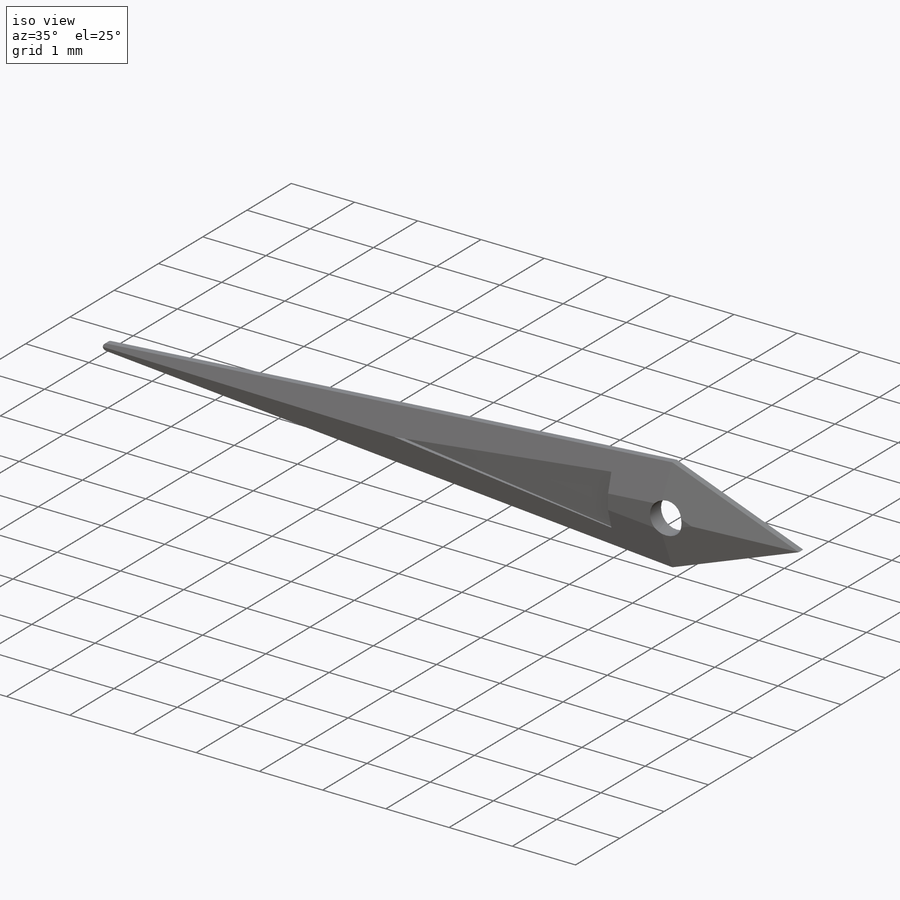
[diagram: iso view]
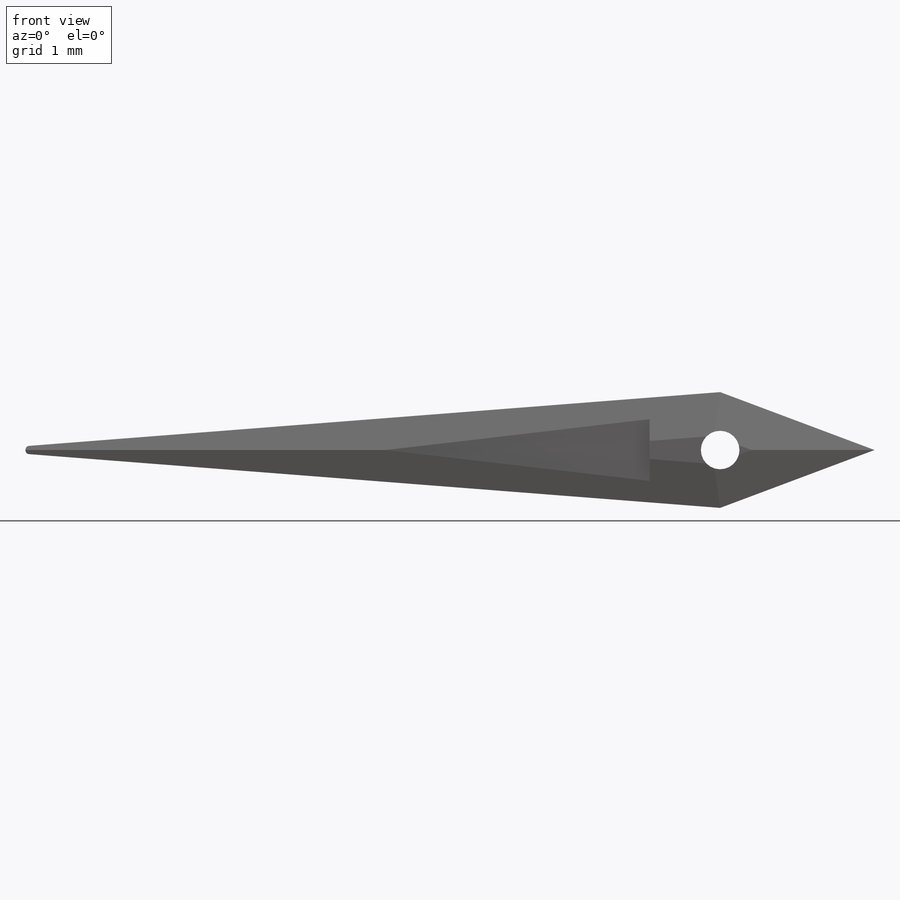
[diagram: front view]
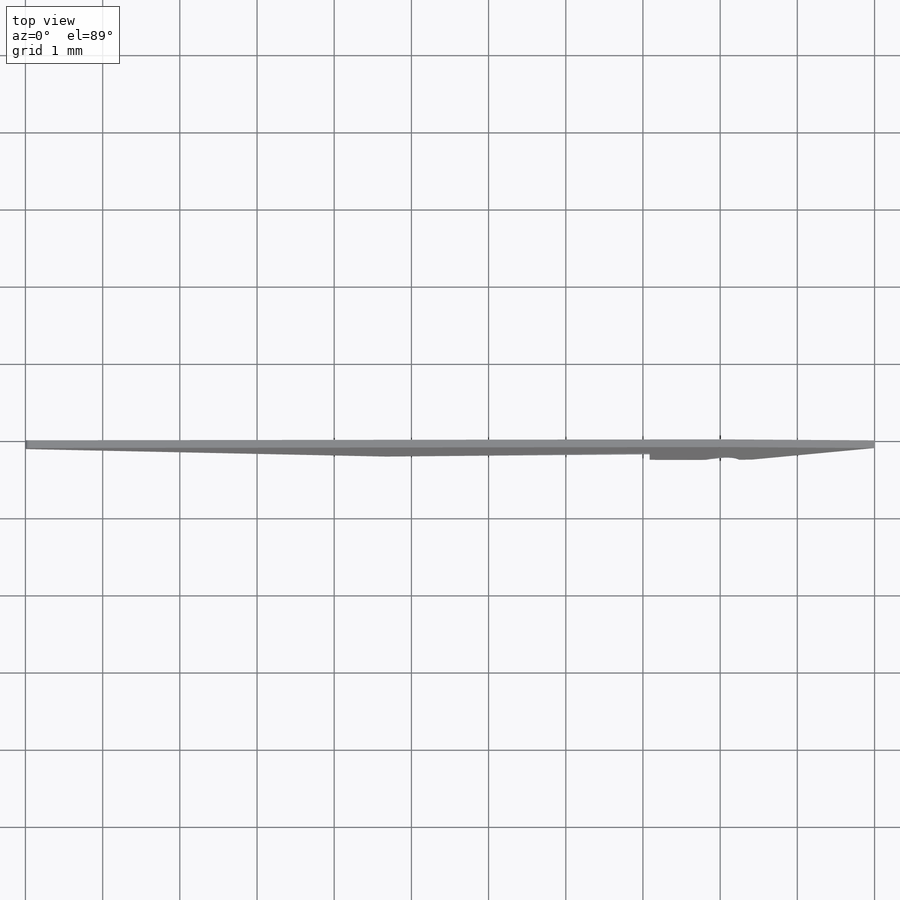
[diagram: top view]
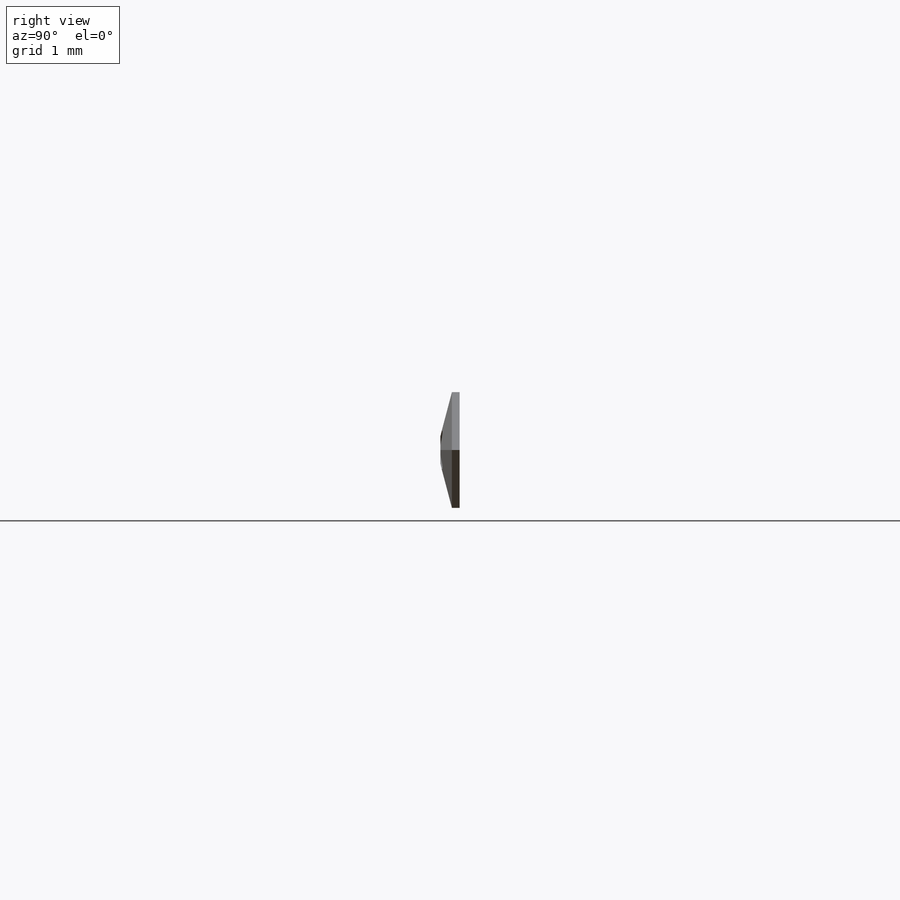
[diagram: right view]
SOLIDWORKS PART (.sldprt)
format: sldprt  version: not decoded by parser v0  size: 196,608 bytes
history: native  units: mm
features: sketch x3, cut_extrude x2, chamfer x2, material x1, extrude x1, fillet x1 (+11 scaffold rows collapsed)
feature tree (21):
  scaffold x11  (default folders/planes/origin — collapsed)
  material  "Material <not specified>"
  sketch  "Sketch1"  dims[D1=11.0mm D2=9.0mm D3=0.05mm D4=0.05mm D5=0.75mm D6=0.75mm]
  extrude  "Boss-Extrude1"  Depth=0.25mm
  sketch  "Sketch2"  dims[D1=0.5mm]
  cut_extrude  "Cut-Extrude1"  Depth=0.25mm
  chamfer  "Chamfer1"  Distance=0.15mm Angle=75deg
  chamfer  "Chamfer2"  Distance=0.15mm Angle=75deg
  fillet  "Fillet1"  Radius=0.05mm
  sketch  "Sketch3"  dims[D1=0.4mm D2=0.4mm]
  cut_extrude  "Cut-Extrude2"  Depth=0.1mm
decode coverage: 9 of 9 modeling features carry decoded parameters
note: suppression state not decoded; provenance and decode notes live in map.json
